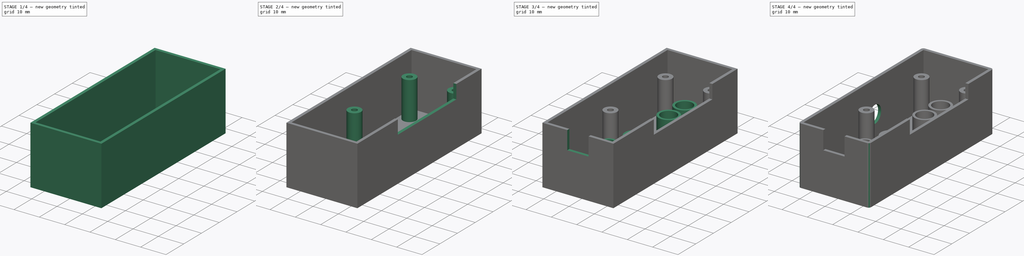
[diagram: build sequence overview — one tinted view per stage of 4, left to right]
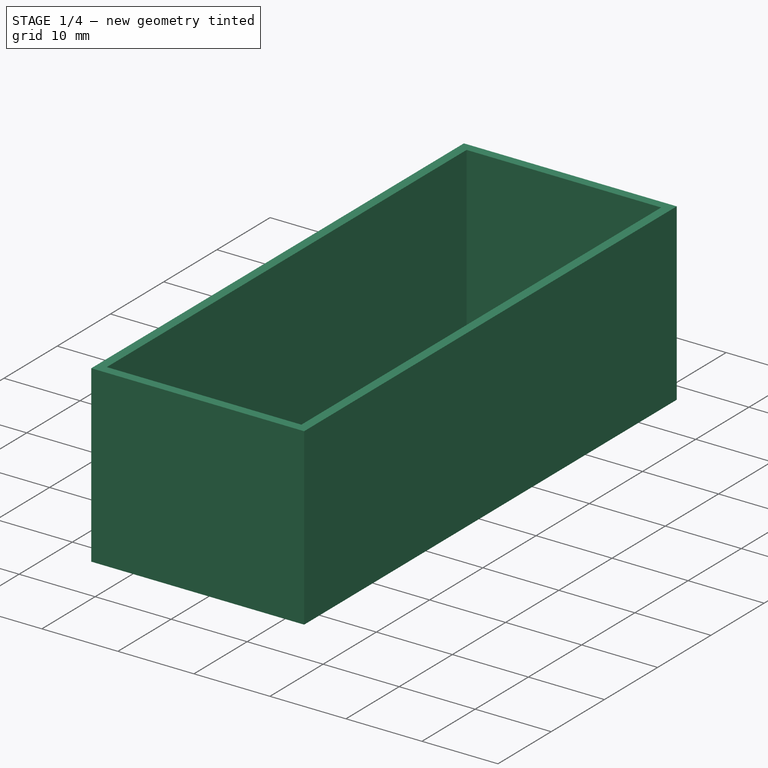
[diagram: stage 1 of 4 — iso view after this stage's code; geometry added in this stage tinted green]
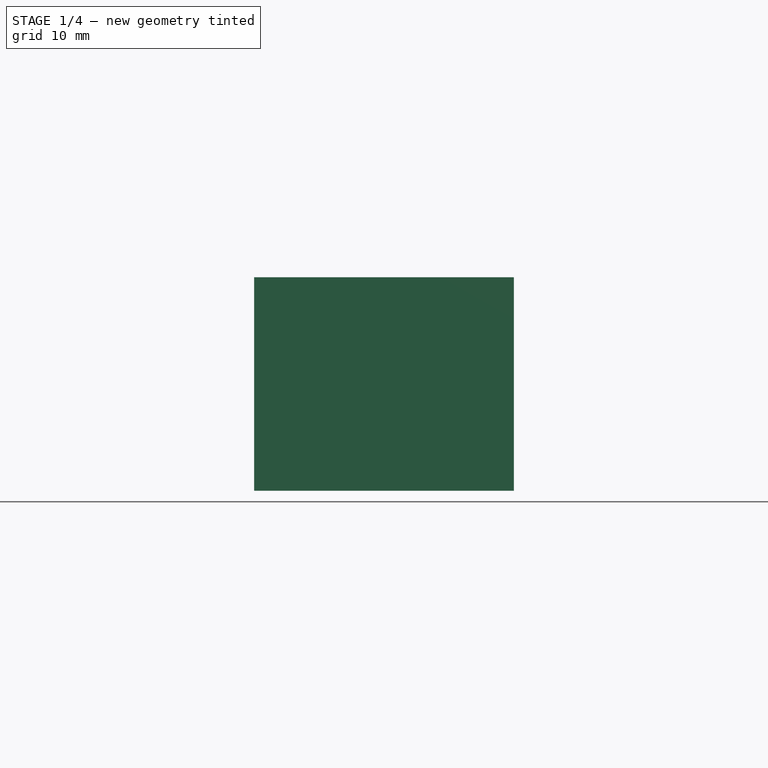
[diagram: stage 1 of 4 — front view after this stage's code; geometry added in this stage tinted green]
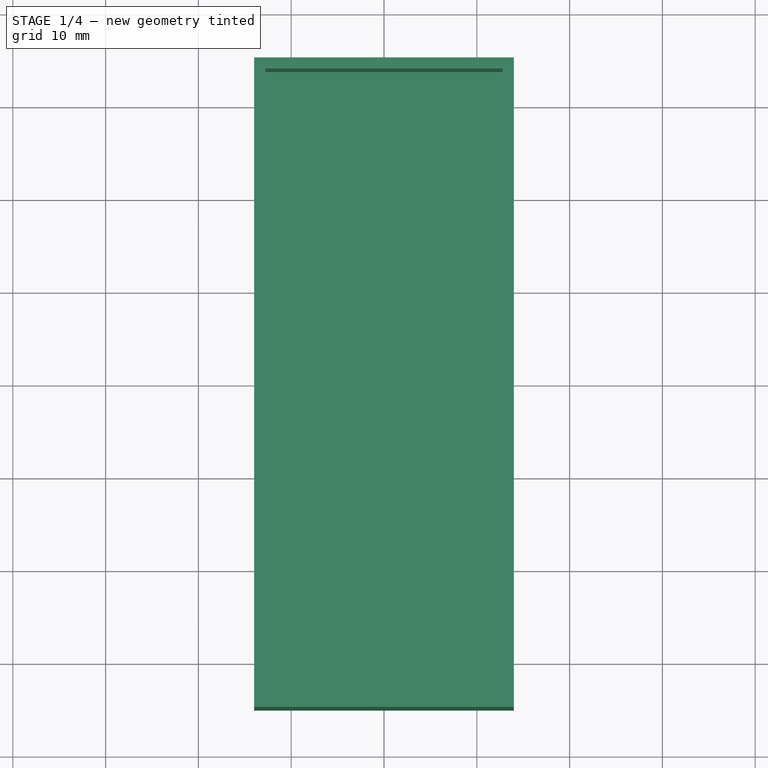
[diagram: stage 1 of 4 — top view after this stage's code; geometry added in this stage tinted green]
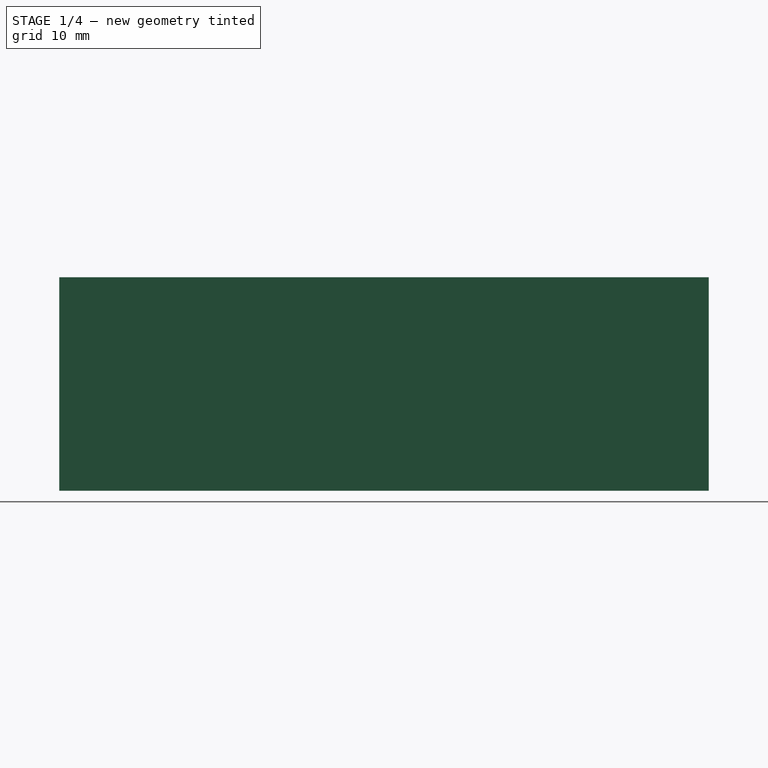
[diagram: stage 1 of 4 — right view after this stage's code; geometry added in this stage tinted green]
FCSTD DOCUMENT  (FreeCAD 0.16R6706 (Git))
Label: Bedieneinheit
License: All rights reserved
LicenseURL: http://de.wikipedia.org/wiki/Alle_Rechte_vorbehalten
objects: Sketcher::SketchObject×8, PartDesign::Pocket×5, PartDesign::Pad×3, PartDesign::Fillet×1
note: 25 computed .brp shape members not serialized (recipe doc carries the construction recipe); baked Part::Feature solids carry a one-line shape summary decoded from their .brp

FEATURE [Sketcher::SketchObject] Sketch
  sketch-geometry (4):
    g0: LineSegment StartX=-14 StartY=35 StartZ=0 EndX=14 EndY=35 EndZ=0
    g1: LineSegment StartX=14 StartY=35 StartZ=0 EndX=14 EndY=-35 EndZ=0
    g2: LineSegment StartX=14 StartY=-35 StartZ=0 EndX=-14 EndY=-35 EndZ=0
    g3: LineSegment StartX=-14 StartY=-35 StartZ=0 EndX=-14 EndY=35 EndZ=0
  constraints (12):
    c: Coincident(g0,g1)
    c: Coincident(g1,g2)
    c: Coincident(g2,g3)
    c: Coincident(g3,g0)
    c: Horizontal(g0)
    c: Horizontal(g2)
    c: Vertical(g1)
    c: Vertical(g3)
    c: Symmetric(g0,g0,g-2)
    c: Symmetric(g0,g1,g-1)
    c: DistanceY(g1,g0) = 70
    c: DistanceX(g0,g0) = 28
FEATURE [PartDesign::Pad] Pad
  Length = 23
  Length2 = 100
  Sketch = -> Sketch
  Type = 0
FEATURE [Sketcher::SketchObject] Sketch001
  ExternalGeometry = -> [Pad]
  Placement = pos=(0,0,23) rot=(0,0,1;0rad)
  Support = -> Pad [Face6]
  sketch-geometry (4):
    g0: LineSegment StartX=-12.8 StartY=33.8 StartZ=0 EndX=12.8 EndY=33.8 EndZ=0
    g1: LineSegment StartX=12.8 StartY=33.8 StartZ=0 EndX=12.8 EndY=-33.8 EndZ=0
    g2: LineSegment StartX=12.8 StartY=-33.8 StartZ=0 EndX=-12.8 EndY=-33.8 EndZ=0
    g3: LineSegment StartX=-12.8 StartY=-33.8 StartZ=0 EndX=-12.8 EndY=33.8 EndZ=0
  constraints (12):
    c: Coincident(g0,g1)
    c: Coincident(g1,g2)
    c: Coincident(g2,g3)
    c: Coincident(g3,g0)
    c: Horizontal(g0)
    c: Horizontal(g2)
    c: Vertical(g1)
    c: Vertical(g3)
    c: Symmetric(g0,g0,g-2)
    c: Symmetric(g0,g2,g-1)
    c: DistanceX(g0,g-4) = 1.2
    c: DistanceY(g0,g-4) = 1.2
FEATURE [PartDesign::Pocket] Pocket
  Length = 21
  Sketch = -> Sketch001
  Type = 0
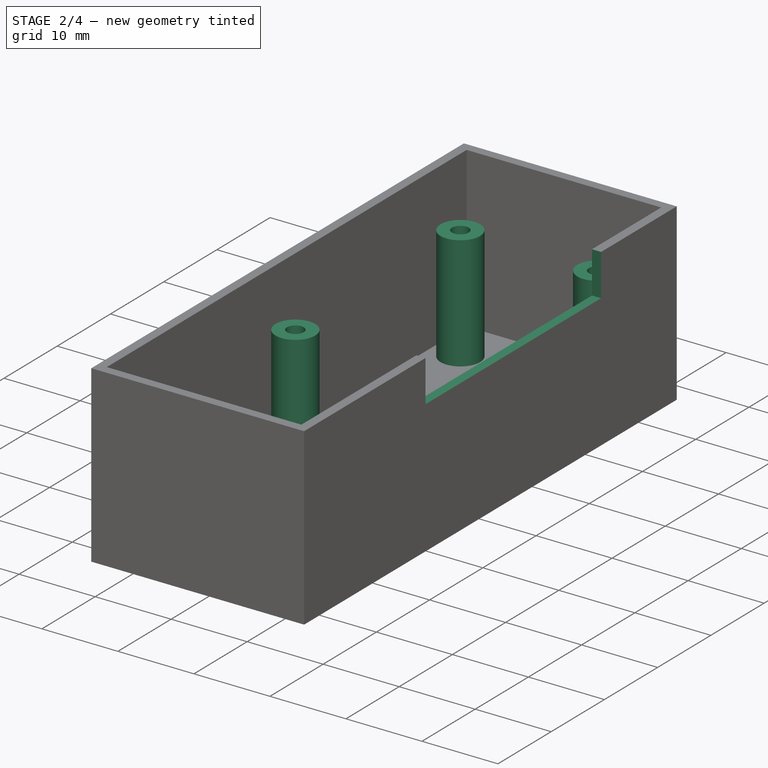
[diagram: stage 2 of 4 — iso view after this stage's code; geometry added in this stage tinted green]
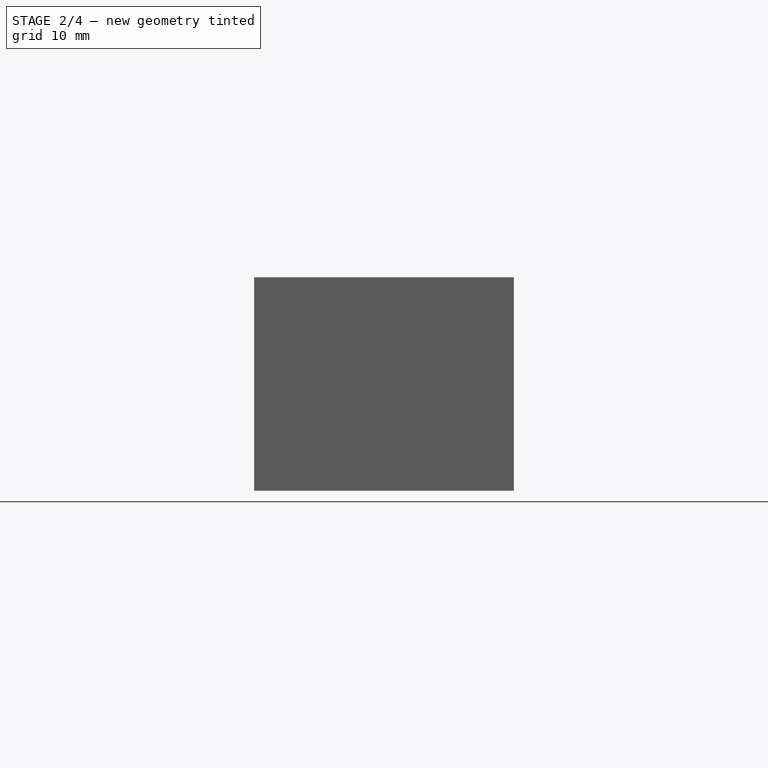
[diagram: stage 2 of 4 — front view after this stage's code; geometry added in this stage tinted green]
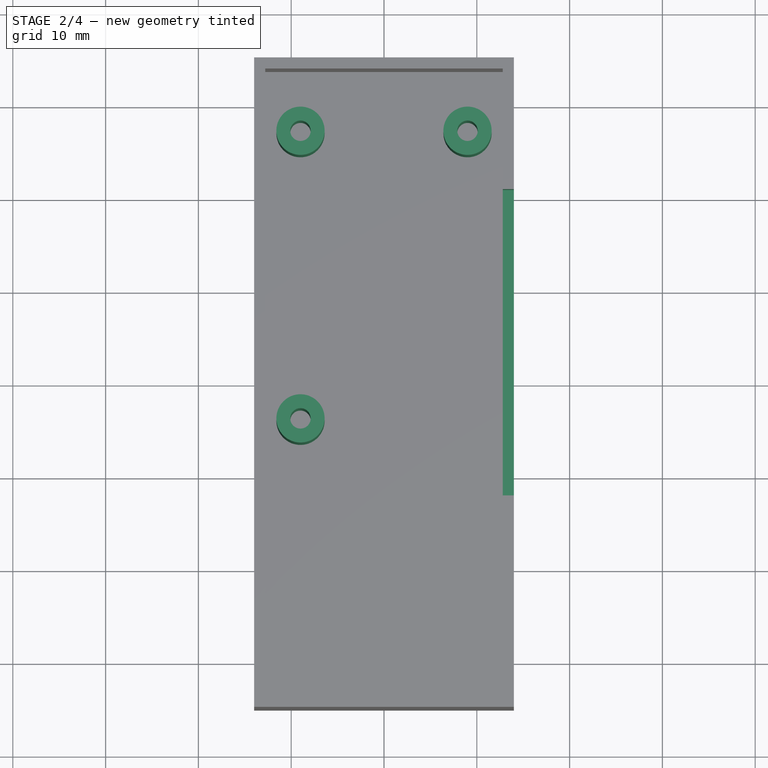
[diagram: stage 2 of 4 — top view after this stage's code; geometry added in this stage tinted green]
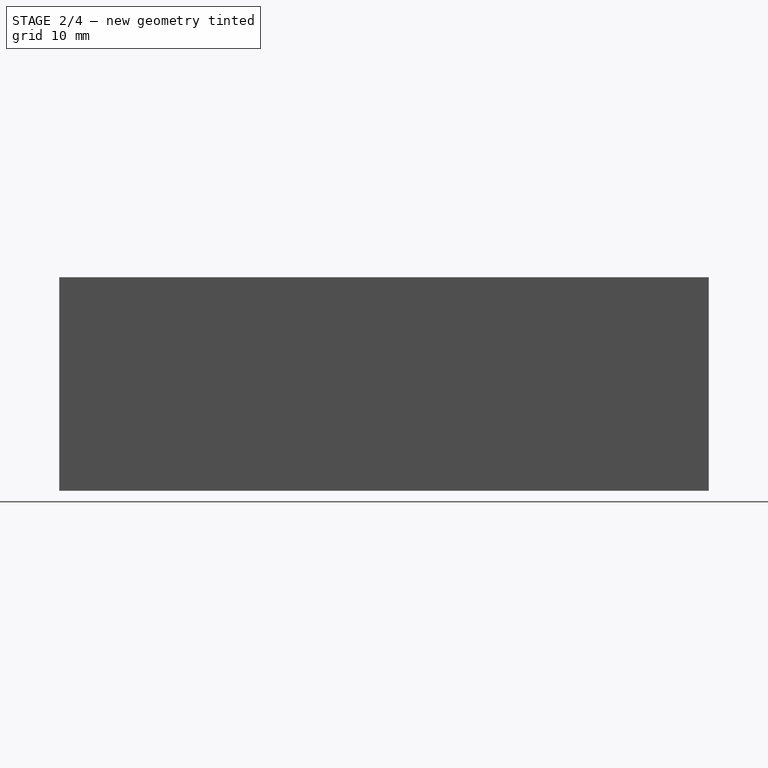
[diagram: stage 2 of 4 — right view after this stage's code; geometry added in this stage tinted green]
FEATURE [Sketcher::SketchObject] Sketch002
  ExternalGeometry = -> [Pocket]
  Placement = pos=(0,0,23) rot=(0,0,1;0rad)
  Support = -> Pocket [Face5]
  sketch-geometry (4):
    g0: LineSegment StartX=12.8 StartY=20.8 StartZ=0 EndX=14 EndY=20.8 EndZ=0
    g1: LineSegment StartX=14 StartY=20.8 StartZ=0 EndX=14 EndY=-12.2 EndZ=0
    g2: LineSegment StartX=14 StartY=-12.2 StartZ=0 EndX=12.8 EndY=-12.2 EndZ=0
    g3: LineSegment StartX=12.8 StartY=-12.2 StartZ=0 EndX=12.8 EndY=20.8 EndZ=0
  constraints (12):
    c: Coincident(g0,g1)
    c: Coincident(g1,g2)
    c: Coincident(g2,g3)
    c: Coincident(g3,g0)
    c: Horizontal(g0)
    c: Horizontal(g2)
    c: Vertical(g1)
    c: Vertical(g3)
    c: PointOnObject(g0,g-3)
    c: PointOnObject(g1,g-4)
    c: DistanceY(g1,g0) = 33
    c: DistanceY(g0,g-3) = 13
FEATURE [PartDesign::Pocket] Pocket001  label="Pocket_12Pol Stecker"
  Length = 5.5
  Sketch = -> Sketch002
  Type = 0
FEATURE [Sketcher::SketchObject] Sketch003
  ExternalGeometry = -> [Pocket001]
  Placement = pos=(0,0,2) rot=(0,0,1;0rad)
  Support = -> Pocket001 [Face14]
  sketch-geometry (8):
    g0: Circle CenterX=-9 CenterY=27.2 CenterZ=0 NormalX=0 NormalY=0 NormalZ=1 Radius=1.1
    g1: Circle CenterX=9 CenterY=27.2 CenterZ=0 NormalX=0 NormalY=0 NormalZ=1 Radius=1.1
    g2: Circle CenterX=-9 CenterY=-3.8 CenterZ=0 NormalX=0 NormalY=0 NormalZ=1 Radius=2.6
    g3: Circle CenterX=-9 CenterY=-3.8 CenterZ=0 NormalX=0 NormalY=0 NormalZ=1 Radius=1.1
    g4: Circle CenterX=-9 CenterY=27.2 CenterZ=0 NormalX=0 NormalY=0 NormalZ=1 Radius=2.6
    g5: Circle CenterX=9 CenterY=27.2 CenterZ=0 NormalX=0 NormalY=0 NormalZ=1 Radius=2.6
    g6: LineSegment [constr] StartX=-9 StartY=27.2 StartZ=0 EndX=9 EndY=27.2 EndZ=0
    g7: LineSegment [constr] StartX=-9 StartY=27.2 StartZ=0 EndX=-9 EndY=-3.8 EndZ=0
  constraints (19):
    c: Coincident(g3,g2)
    c: Coincident(g4,g0)
    c: Coincident(g5,g1)
    c: DistanceX(g0,g1) = 18
    c: DistanceX(g0,g-1) = 9
    c: Radius(g1) = 1.1
    c: Radius(g5) = 2.6
    c: Equal(g4,g5)
    c: Equal(g5,g2)
    c: Equal(g3,g1)
    c: Equal(g0,g1)
    c: DistanceY(g-5,g1) = 61
    c: Coincident(g6,g0)
    c: Coincident(g6,g1)
    c: Horizontal(g6)
    c: DistanceY(g2,g0) = 31
    c: Coincident(g7,g0)
    c: Coincident(g7,g2)
    c: Vertical(g7)
FEATURE [PartDesign::Pad] Pad001  label="Pad_Befestigungslöscher"
  Length = 15
  Length2 = 100
  Sketch = -> Sketch003
  Type = 0
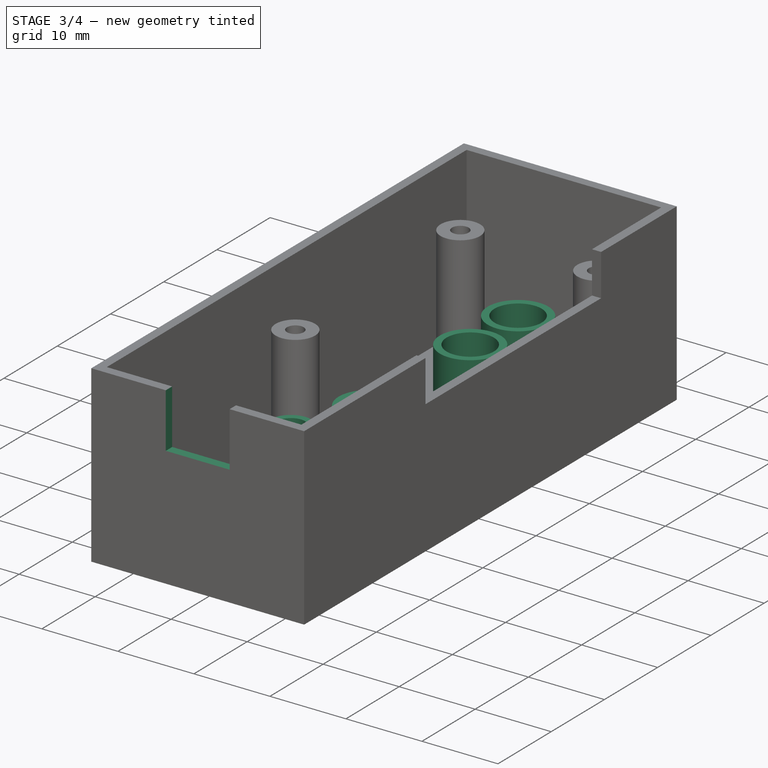
[diagram: stage 3 of 4 — iso view after this stage's code; geometry added in this stage tinted green]
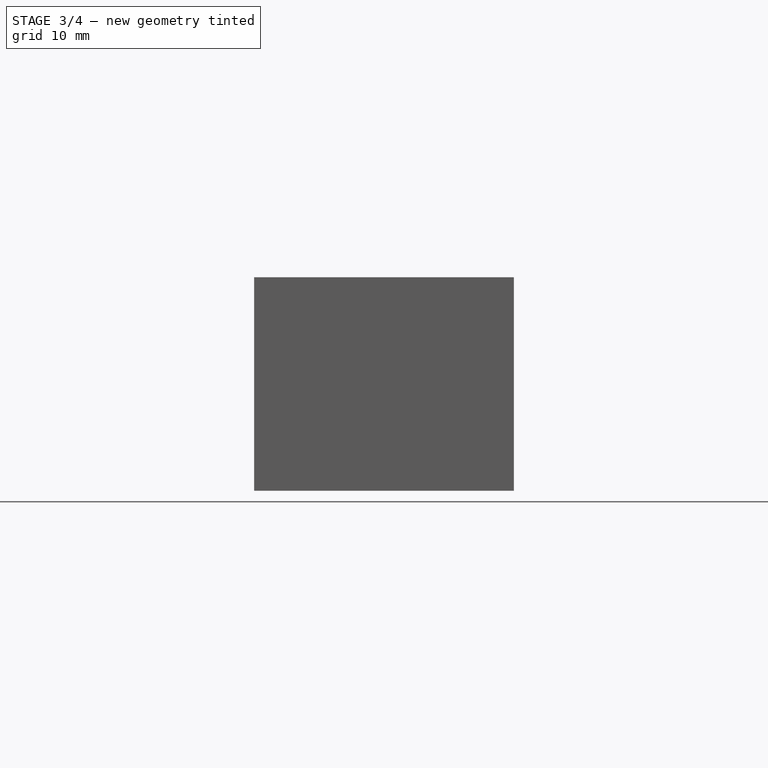
[diagram: stage 3 of 4 — front view after this stage's code; geometry added in this stage tinted green]
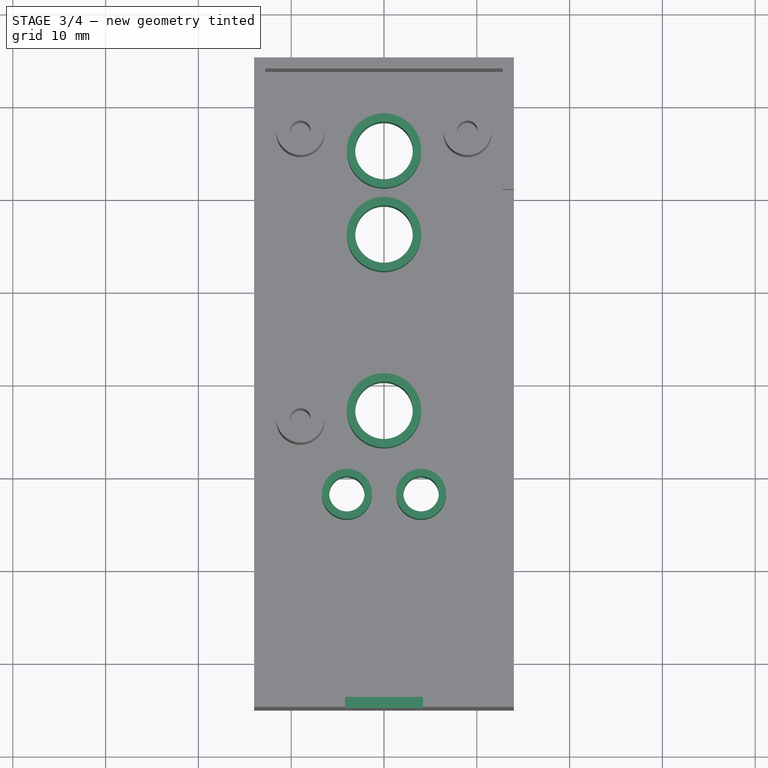
[diagram: stage 3 of 4 — top view after this stage's code; geometry added in this stage tinted green]
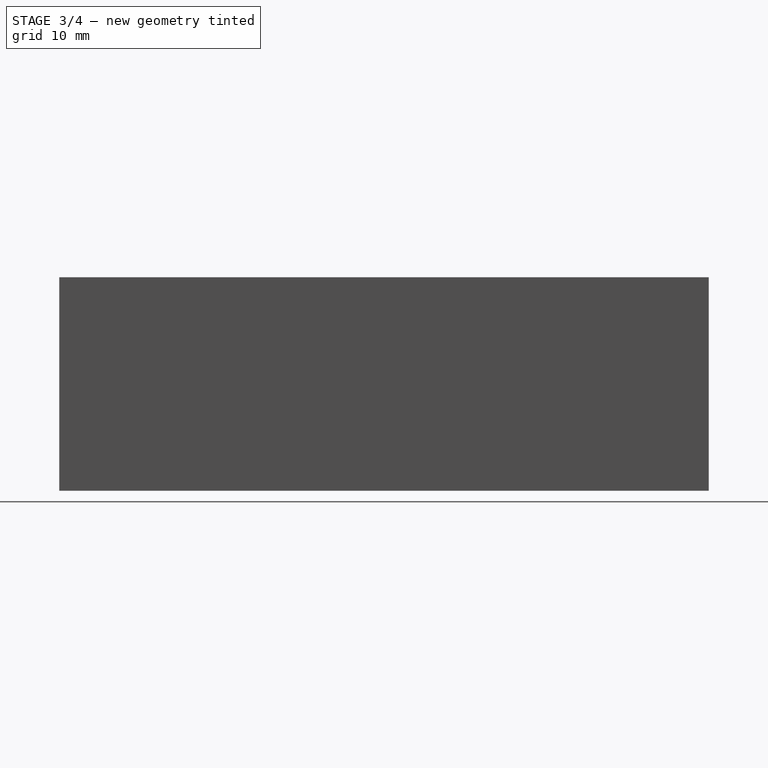
[diagram: stage 3 of 4 — right view after this stage's code; geometry added in this stage tinted green]
FEATURE [Sketcher::SketchObject] Sketch004
  ExternalGeometry = -> [Pad001]
  Placement = pos=(0,0,2) rot=(0,0,1;0rad)
  Support = -> Pad001 [Face14]
  sketch-geometry (8):
    g0: Circle CenterX=0 CenterY=25.2 CenterZ=0 NormalX=0 NormalY=0 NormalZ=1 Radius=3.1
    g1: Circle CenterX=0 CenterY=16.2 CenterZ=0 NormalX=0 NormalY=0 NormalZ=1 Radius=3.1
    g2: Circle CenterX=0 CenterY=-2.8 CenterZ=0 NormalX=0 NormalY=0 NormalZ=1 Radius=3.1
    g3: Circle CenterX=-4 CenterY=-11.8 CenterZ=0 NormalX=0 NormalY=0 NormalZ=1 Radius=1.9
    g4: Circle CenterX=4 CenterY=-11.8 CenterZ=0 NormalX=0 NormalY=0 NormalZ=1 Radius=1.9
    g5: LineSegment [constr] StartX=0 StartY=25.2 StartZ=0 EndX=0 EndY=16.2 EndZ=0
    g6: LineSegment [constr] StartX=0 StartY=16.2 StartZ=0 EndX=0 EndY=-2.8 EndZ=0
    g7: LineSegment [constr] StartX=-4 StartY=-11.8 StartZ=0 EndX=4 EndY=-11.8 EndZ=0
  constraints (21):
    c: Coincident(g5,g0)
    c: Coincident(g5,g1)
    c: Coincident(g6,g1)
    c: Coincident(g6,g2)
    c: Vertical(g6)
    c: Vertical(g5)
    c: Coincident(g7,g3)
    c: Coincident(g7,g4)
    c: Horizontal(g7)
    c: DistanceY(g1,g0) = 9
    c: DistanceY(g2,g1) = 19
    c: DistanceY(g3,g2) = 9
    c: Symmetric(g3,g4,g6)
    c: Radius(g0) = 3.1
    c: Equal(g1,g0)
    c: Equal(g1,g2)
    c: DistanceX(g-3,g0) = 9
    c: DistanceY(g0,g-3) = 2
    c: DistanceX(g3,g4) = 8
    c: Radius(g4) = 1.9
    c: Equal(g4,g3)
FEATURE [PartDesign::Pocket] Pocket002  label="Pocket_TasterLoescher"
  Length = 2
  Sketch = -> Sketch004
  Type = 0
FEATURE [Sketcher::SketchObject] Sketch005
  ExternalGeometry = -> [Pocket002]
  Placement = pos=(0,0,2) rot=(0,0,1;0rad)
  Support = -> Pocket002 [Face19]
  sketch-geometry (10):
    g0: Circle CenterX=0 CenterY=25.2 CenterZ=0 NormalX=0 NormalY=0 NormalZ=1 Radius=4
    g1: Circle CenterX=0 CenterY=16.2 CenterZ=0 NormalX=0 NormalY=0 NormalZ=1 Radius=4
    g2: Circle CenterX=0 CenterY=-2.8 CenterZ=0 NormalX=0 NormalY=0 NormalZ=1 Radius=4
    g3: Circle CenterX=-4 CenterY=-11.8 CenterZ=0 NormalX=0 NormalY=0 NormalZ=1 Radius=2.7
    g4: Circle CenterX=4 CenterY=-11.8 CenterZ=0 NormalX=0 NormalY=0 NormalZ=1 Radius=2.7
    g5: Circle CenterX=0 CenterY=25.2 CenterZ=0 NormalX=0 NormalY=0 NormalZ=1 Radius=3.1
    g6: Circle CenterX=0 CenterY=16.2 CenterZ=0 NormalX=0 NormalY=0 NormalZ=1 Radius=3.1
    g7: Circle CenterX=0 CenterY=-2.8 CenterZ=0 NormalX=0 NormalY=0 NormalZ=1 Radius=3.1
    g8: Circle CenterX=4 CenterY=-11.8 CenterZ=0 NormalX=0 NormalY=0 NormalZ=1 Radius=1.9
    g9: Circle CenterX=-4 CenterY=-11.8 CenterZ=0 NormalX=0 NormalY=0 NormalZ=1 Radius=1.9
  constraints (20):
    c: Coincident(g0,g-3)
    c: Coincident(g1,g-4)
    c: Coincident(g2,g-5)
    c: Coincident(g3,g-6)
    c: Coincident(g4,g-7)
    c: Radius(g0) = 4
    c: Equal(g1,g0)
    c: Equal(g2,g0)
    c: Radius(g3) = 2.7
    c: Equal(g4,g3)
    c: Coincident(g5,g0)
    c: Coincident(g6,g1)
    c: Coincident(g7,g2)
    c: Coincident(g8,g4)
    c: Coincident(g9,g3)
    c: Equal(g5,g-3)
    c: Equal(g6,g-4)
    c: Equal(g7,g-5)
    c: Equal(g9,g-6)
    c: Equal(g8,g-7)
FEATURE [PartDesign::Pad] Pad002  label="Taster_Fuehrung"
  Length = 8
  Length2 = 100
  Sketch = -> Sketch005
  Type = 0
FEATURE [Sketcher::SketchObject] Sketch006
  ExternalGeometry = -> [Pad002]
  Placement = pos=(0,0,23) rot=(0,0,1;0rad)
  Support = -> Pad002 [Face5]
  sketch-geometry (4):
    g0: LineSegment StartX=-4.2 StartY=-33.8 StartZ=0 EndX=4.2 EndY=-33.8 EndZ=0
    g1: LineSegment StartX=4.2 StartY=-33.8 StartZ=0 EndX=4.2 EndY=-35 EndZ=0
    g2: LineSegment StartX=4.2 StartY=-35 StartZ=0 EndX=-4.2 EndY=-35 EndZ=0
    g3: LineSegment StartX=-4.2 StartY=-35 StartZ=0 EndX=-4.2 EndY=-33.8 EndZ=0
  constraints (12):
    c: Coincident(g0,g1)
    c: Coincident(g1,g2)
    c: Coincident(g2,g3)
    c: Coincident(g3,g0)
    c: Horizontal(g0)
    c: Horizontal(g2)
    c: Vertical(g1)
    c: Vertical(g3)
    c: PointOnObject(g0,g-3)
    c: PointOnObject(g1,g-4)
    c: DistanceX(g2,g1) = 8.4
    c: Symmetric(g2,g1,g-2)
FEATURE [PartDesign::Pocket] Pocket003  label="USB_Ausschnitt"
  Length = 7.2
  Sketch = -> Sketch006
  Type = 0
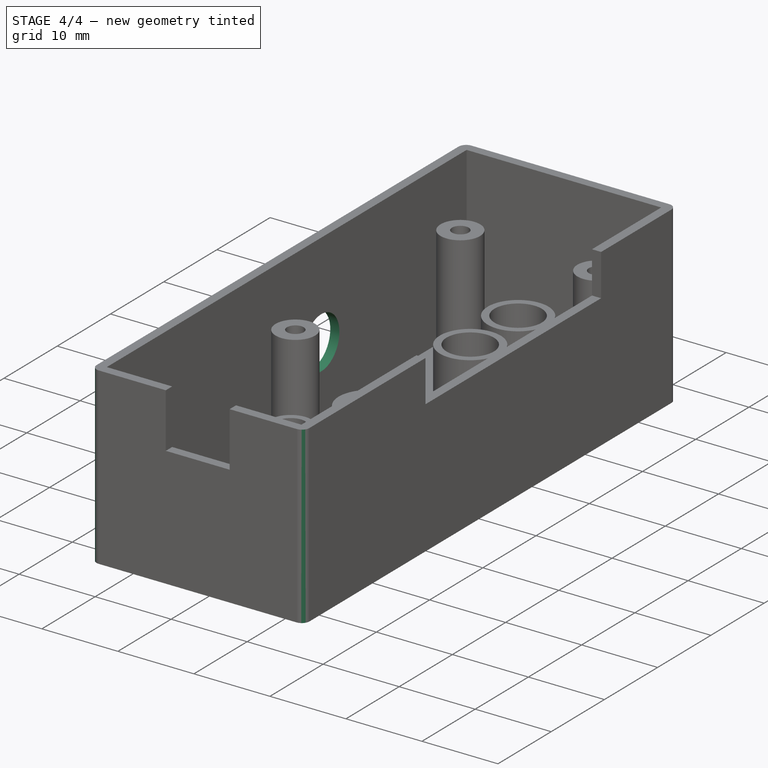
[diagram: stage 4 of 4 — iso view after this stage's code; geometry added in this stage tinted green]
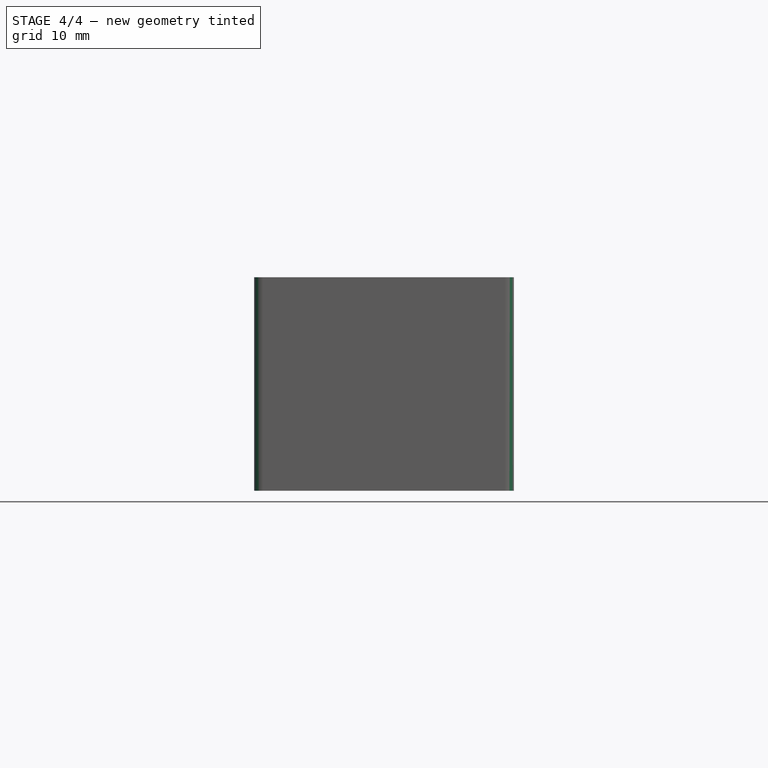
[diagram: stage 4 of 4 — front view after this stage's code; geometry added in this stage tinted green]
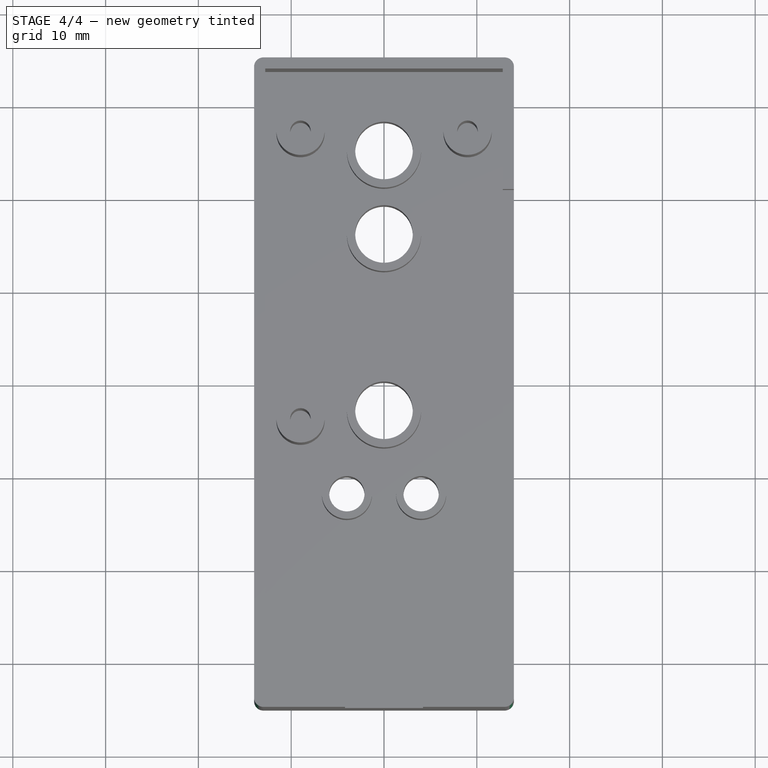
[diagram: stage 4 of 4 — top view after this stage's code; geometry added in this stage tinted green]
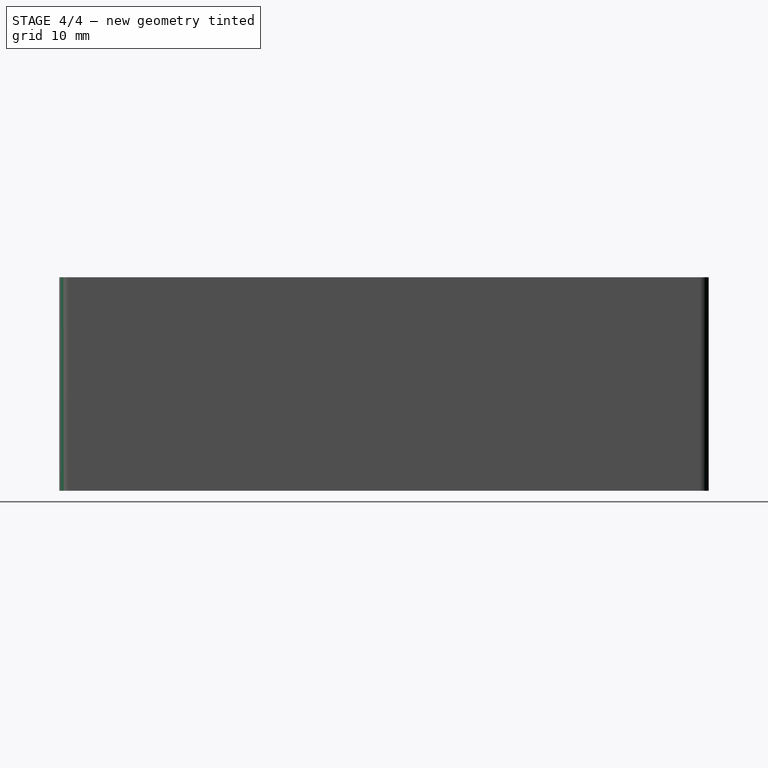
[diagram: stage 4 of 4 — right view after this stage's code; geometry added in this stage tinted green]
FEATURE [Sketcher::SketchObject] Sketch007
  ExternalGeometry = -> [Pocket003]
  Placement = pos=(-14,0,0) rot=(0.57735,-0.57735,-0.57735;2.0944rad)
  Support = -> Pocket003 [Face2]
  sketch-geometry (1):
    g0: Circle CenterX=-6.5 CenterY=10.5 CenterZ=0 NormalX=0 NormalY=0 NormalZ=1 Radius=3.4
  constraints (3):
    c: DistanceX(g0,g-3) = 41.5
    c: DistanceY(g-1,g0) = 10.5
    c: Radius(g0) = 3.4
FEATURE [PartDesign::Pocket] Pocket004
  Length = 2
  Sketch = -> Sketch007
  Type = 0
FEATURE [PartDesign::Fillet] Fillet
  Base = -> Pocket004 [Edge1,Edge5,Edge10,Edge2]
  Radius = 1
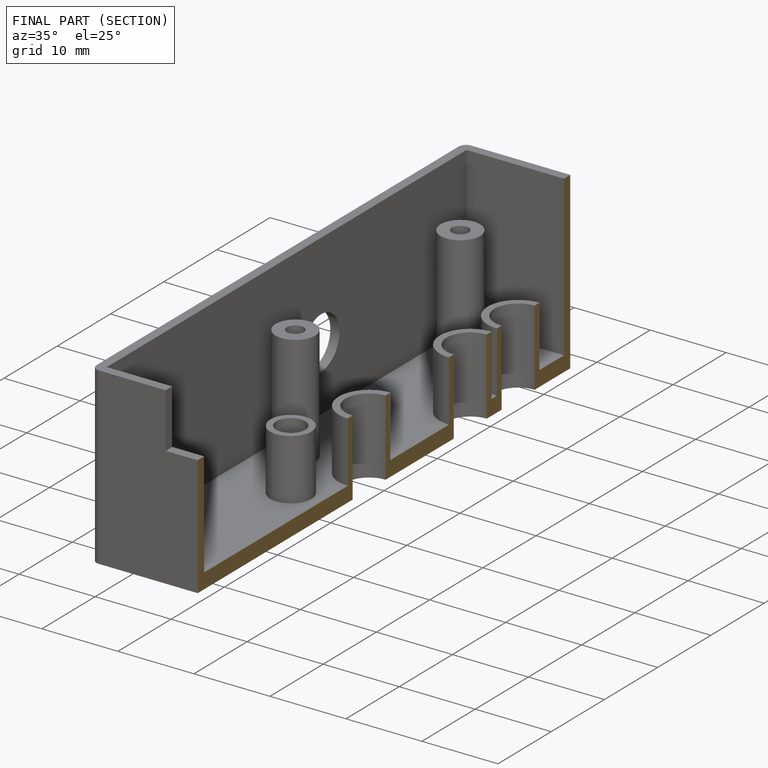
[diagram: finished part — half-section view (interior)]
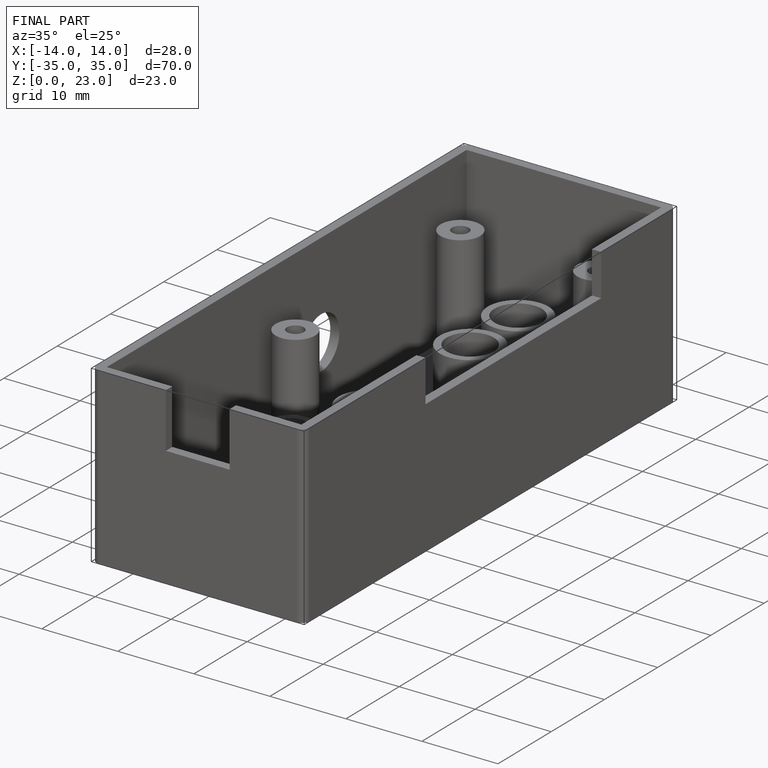
[diagram: finished part — iso view with bounding-box wireframe]
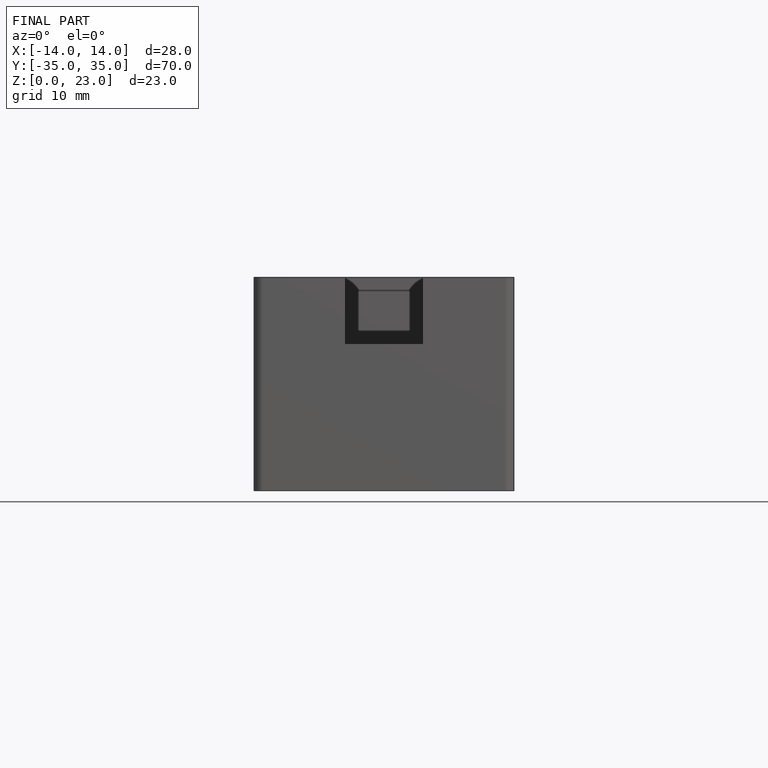
[diagram: finished part — front view with bounding-box wireframe]
